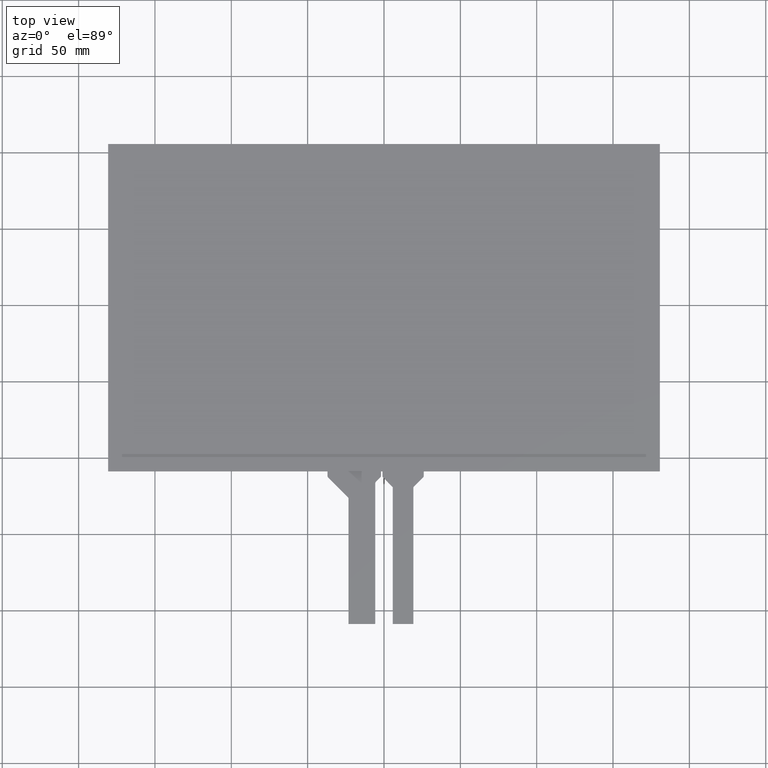
[diagram: clean part render]
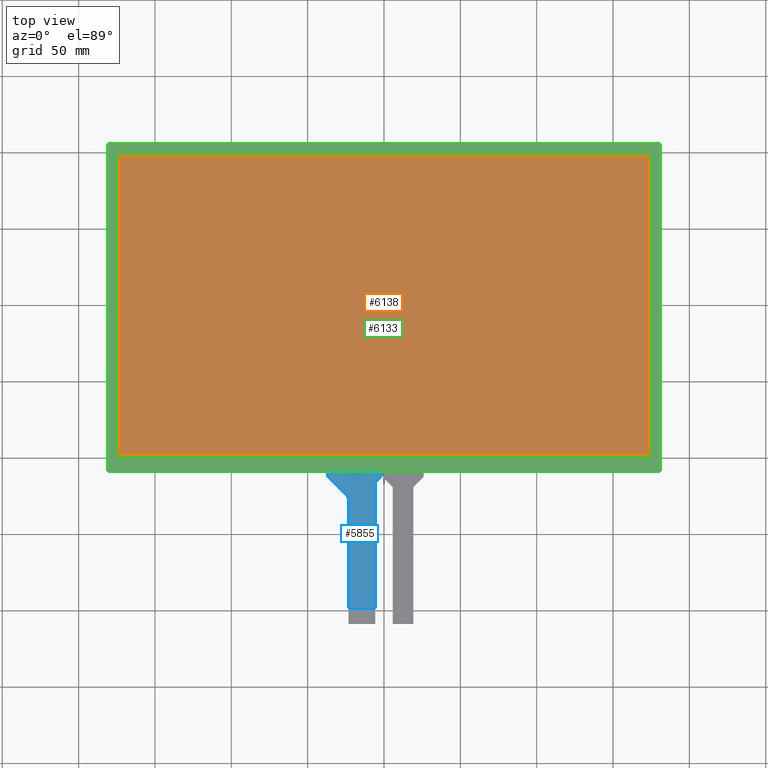
[diagram: same view with three faces highlighted in distinct colors, each labeled with its STEP entity id]
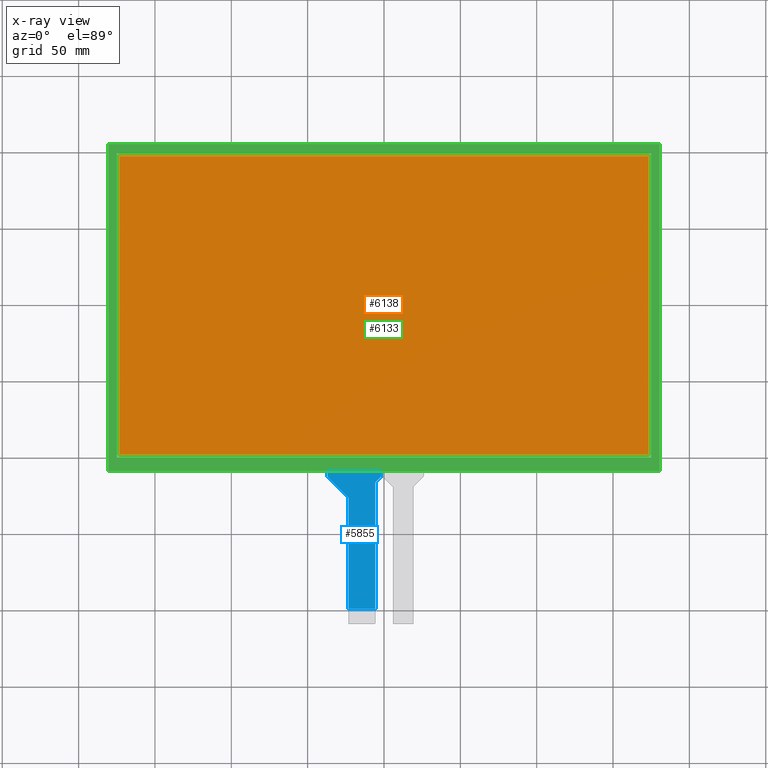
[diagram: x-ray of the same camera — body ghosted, the three highlighted faces saturated]
A machine part, top view with three faces highlighted in distinct colors.
The next image is the same camera in x-ray (body ghosted, the three faces saturated) — at least one of them is partly hidden behind the body in this view.
Their STEP definitions:

[orange] entity #6138 — the highlighted planar face has unit normal (0, 0, 1).
#368=PLANE('',#6476);
#662=FACE_OUTER_BOUND('',#960,.T.);
#960=EDGE_LOOP('',(#5826,#5827,#5828,#5829));
#1766=LINE('',#9618,#2606);
#1770=LINE('',#9626,#2610);
#1773=LINE('',#9632,#2613);
#1776=LINE('',#9637,#2616);
#2606=VECTOR('',#7890,10.);
#2610=VECTOR('',#7896,10.);
#2613=VECTOR('',#7901,10.);
#2616=VECTOR('',#7906,10.);
#3218=VERTEX_POINT('',#9616);
#3219=VERTEX_POINT('',#9617);
#3222=VERTEX_POINT('',#9625);
#3224=VERTEX_POINT('',#9631);
#4070=EDGE_CURVE('',#3218,#3219,#1766,.T.);
#4074=EDGE_CURVE('',#3222,#3218,#1770,.T.);
#4077=EDGE_CURVE('',#3224,#3222,#1773,.T.);
#4080=EDGE_CURVE('',#3219,#3224,#1776,.T.);
#5826=ORIENTED_EDGE('',*,*,#4070,.T.);
#5827=ORIENTED_EDGE('',*,*,#4080,.T.);
#5828=ORIENTED_EDGE('',*,*,#4077,.T.);
#5829=ORIENTED_EDGE('',*,*,#4074,.T.);
#6138=ADVANCED_FACE('',(#662),#368,.T.);
#6476=AXIS2_PLACEMENT_3D('',#9689,#7952,#7953);
#7890=DIRECTION('',(1.,0.,0.));
#7896=DIRECTION('',(0.,-1.,0.));
#7901=DIRECTION('',(-1.,0.,0.));
#7906=DIRECTION('',(0.,1.,0.));
#7952=DIRECTION('center_axis',(0.,0.,1.));
#7953=DIRECTION('ref_axis',(1.,0.,0.));
#9616=CARTESIAN_POINT('',(-172.97,-97.615,0.));
#9617=CARTESIAN_POINT('',(172.97,-97.615,0.));
#9618=CARTESIAN_POINT('',(-86.485,-97.615,0.));
#9625=CARTESIAN_POINT('',(-172.97,97.615,0.));
#9626=CARTESIAN_POINT('',(-172.97,48.05,0.));
#9631=CARTESIAN_POINT('',(172.97,97.615,0.));
#9632=CARTESIAN_POINT('',(86.485,97.615,0.));
#9637=CARTESIAN_POINT('',(172.97,-49.565,0.));
#9689=CARTESIAN_POINT('Origin',(-1.77635683940025E-14,-1.51499999999997,
0.));

[blue] entity #5855 — the highlighted planar face has unit normal (0, 0, 1).
#93=PLANE('',#6179);
#379=FACE_OUTER_BOUND('',#673,.T.);
#673=EDGE_LOOP('',(#4158,#4159,#4160,#4161,#4162,#4163,#4164,#4165,#4166,
#4167,#4168,#4169));
#983=LINE('',#8019,#1823);
#993=LINE('',#8042,#1833);
#994=LINE('',#8045,#1834);
#995=LINE('',#8047,#1835);
#996=LINE('',#8049,#1836);
#997=LINE('',#8053,#1837);
#998=LINE('',#8057,#1838);
#999=LINE('',#8058,#1839);
#1823=VECTOR('',#6531,10.);
#1833=VECTOR('',#6549,10.);
#1834=VECTOR('',#6552,10.);
#1835=VECTOR('',#6553,10.);
#1836=VECTOR('',#6554,10.);
#1837=VECTOR('',#6557,10.);
#1838=VECTOR('',#6560,10.);
#1839=VECTOR('',#6561,10.);
#2648=CIRCLE('',#6172,1.);
#2651=CIRCLE('',#6177,1.);
#2652=CIRCLE('',#6180,1.);
#2653=CIRCLE('',#6181,1.);
#2687=VERTEX_POINT('',#8009);
#2688=VERTEX_POINT('',#8010);
#2691=VERTEX_POINT('',#8018);
#2699=VERTEX_POINT('',#8035);
#2700=VERTEX_POINT('',#8037);
#2701=VERTEX_POINT('',#8044);
#2702=VERTEX_POINT('',#8046);
#2703=VERTEX_POINT('',#8048);
#2704=VERTEX_POINT('',#8050);
#2705=VERTEX_POINT('',#8052);
#2706=VERTEX_POINT('',#8054);
#2707=VERTEX_POINT('',#8056);
#3267=EDGE_CURVE('',#2687,#2688,#2648,.T.);
#3271=EDGE_CURVE('',#2691,#2688,#983,.T.);
#3280=EDGE_CURVE('',#2699,#2700,#2651,.T.);
#3283=EDGE_CURVE('',#2687,#2700,#993,.T.);
#3284=EDGE_CURVE('',#2699,#2701,#994,.T.);
#3285=EDGE_CURVE('',#2702,#2701,#995,.T.);
#3286=EDGE_CURVE('',#2702,#2703,#996,.T.);
#3287=EDGE_CURVE('',#2704,#2703,#2652,.T.);
#3288=EDGE_CURVE('',#2704,#2705,#997,.T.);
#3289=EDGE_CURVE('',#2706,#2705,#2653,.T.);
#3290=EDGE_CURVE('',#2706,#2707,#998,.T.);
#3291=EDGE_CURVE('',#2707,#2691,#999,.T.);
#4158=ORIENTED_EDGE('',*,*,#3280,.F.);
#4159=ORIENTED_EDGE('',*,*,#3284,.T.);
#4160=ORIENTED_EDGE('',*,*,#3285,.F.);
#4161=ORIENTED_EDGE('',*,*,#3286,.T.);
#4162=ORIENTED_EDGE('',*,*,#3287,.F.);
#4163=ORIENTED_EDGE('',*,*,#3288,.T.);
#4164=ORIENTED_EDGE('',*,*,#3289,.F.);
#4165=ORIENTED_EDGE('',*,*,#3290,.T.);
#4166=ORIENTED_EDGE('',*,*,#3291,.T.);
#4167=ORIENTED_EDGE('',*,*,#3271,.T.);
#4168=ORIENTED_EDGE('',*,*,#3267,.F.);
#4169=ORIENTED_EDGE('',*,*,#3283,.T.);
#5855=ADVANCED_FACE('',(#379),#93,.T.);
#6172=AXIS2_PLACEMENT_3D('',#8011,#6523,#6524);
#6177=AXIS2_PLACEMENT_3D('',#8038,#6543,#6544);
#6179=AXIS2_PLACEMENT_3D('',#8043,#6550,#6551);
#6180=AXIS2_PLACEMENT_3D('',#8051,#6555,#6556);
#6181=AXIS2_PLACEMENT_3D('',#8055,#6558,#6559);
#6523=DIRECTION('center_axis',(0.,0.,1.));
#6524=DIRECTION('ref_axis',(-0.923531889914345,0.383521639951696,0.));
#6531=DIRECTION('',(-5.27173776538863E-16,1.,0.));
#6543=DIRECTION('center_axis',(0.,0.,-1.));
#6544=DIRECTION('ref_axis',(0.923531889914352,-0.38352163995168,0.));
#6549=DIRECTION('',(0.708388929935268,0.705822303377532,0.));
#6550=DIRECTION('center_axis',(0.,0.,1.));
#6551=DIRECTION('ref_axis',(1.,0.,0.));
#6552=DIRECTION('',(0.,1.,0.));
#6553=DIRECTION('',(1.,9.83041969784311E-17,0.));
#6554=DIRECTION('',(0.,-1.,0.));
#6555=DIRECTION('center_axis',(0.,0.,-1.));
#6556=DIRECTION('ref_axis',(-0.924226414342084,-0.381844909658848,0.));
#6557=DIRECTION('',(0.705822303377533,-0.708388929935268,0.));
#6558=DIRECTION('center_axis',(0.,0.,1.));
#6559=DIRECTION('ref_axis',(0.924226414342084,0.38184490965885,0.));
#6560=DIRECTION('',(1.07527653716722E-16,-1.,0.));
#6561=DIRECTION('',(1.,0.,0.));
#8009=CARTESIAN_POINT('',(-5.45582230337761,-115.758301208075,-0.2));
#8010=CARTESIAN_POINT('',(-5.75000000000008,-116.466690138011,-0.2));
#8011=CARTESIAN_POINT('Origin',(-4.75000000000008,-116.466690138011,-0.2));
#8018=CARTESIAN_POINT('',(-5.75000000000003,-198.715,-0.2));
#8019=CARTESIAN_POINT('',(-5.75000000000003,-208.715,-0.2));
#8035=CARTESIAN_POINT('',(-2.00000000000008,-111.899722905467,-0.2));
#8037=CARTESIAN_POINT('',(-2.29417769662254,-112.608111835403,-0.2));
#8038=CARTESIAN_POINT('Origin',(-3.00000000000008,-111.899722905467,-0.2));
#8042=CARTESIAN_POINT('',(-5.75000000000008,-116.051413043478,-0.2));
#8043=CARTESIAN_POINT('Origin',(-19.5000000000001,-158.715,-0.2));
#8044=CARTESIAN_POINT('',(-2.00000000000008,-108.715,-0.2));
#8045=CARTESIAN_POINT('',(-2.00000000000008,-112.315,-0.2));
#8046=CARTESIAN_POINT('',(-37.0000000000001,-108.715,-0.2));
#8047=CARTESIAN_POINT('',(80.6,-108.715,-0.2));
#8048=CARTESIAN_POINT('',(-37.0000000000001,-111.901849170578,-0.2));
#8049=CARTESIAN_POINT('',(-37.0000000000001,-108.715,-0.2));
#8050=CARTESIAN_POINT('',(-36.7083889299354,-112.607671473956,-0.2));
#8051=CARTESIAN_POINT('Origin',(-36.0000000000001,-111.901849170578,-0.2));
#8052=CARTESIAN_POINT('',(-23.5416110700648,-125.822328526044,-0.2));
#8053=CARTESIAN_POINT('',(-37.0000000000001,-112.315,-0.2));
#8054=CARTESIAN_POINT('',(-23.25,-126.528150829422,-0.2));
#8055=CARTESIAN_POINT('Origin',(-24.25,-126.528150829422,-0.2));
#8056=CARTESIAN_POINT('',(-23.25,-198.715,-0.2));
#8057=CARTESIAN_POINT('',(-23.25,-126.115,-0.2));
#8058=CARTESIAN_POINT('',(-12.6250000000001,-198.715,-0.2));

[green] entity #6133 — the highlighted planar face has unit normal (0, 0, 1).
#85=FACE_BOUND('',#953,.T.);
#363=PLANE('',#6471);
#657=FACE_OUTER_BOUND('',#952,.T.);
#952=EDGE_LOOP('',(#5794,#5795,#5796,#5797));
#953=EDGE_LOOP('',(#5798,#5799,#5800,#5801));
#1778=LINE('',#9642,#2618);
#1782=LINE('',#9650,#2622);
#1785=LINE('',#9656,#2625);
#1788=LINE('',#9661,#2628);
#1790=LINE('',#9667,#2630);
#1791=LINE('',#9669,#2631);
#1792=LINE('',#9671,#2632);
#1793=LINE('',#9672,#2633);
#2618=VECTOR('',#7910,10.);
#2622=VECTOR('',#7916,10.);
#2625=VECTOR('',#7921,10.);
#2628=VECTOR('',#7926,10.);
#2630=VECTOR('',#7932,10.);
#2631=VECTOR('',#7933,10.);
#2632=VECTOR('',#7934,10.);
#2633=VECTOR('',#7935,10.);
#3226=VERTEX_POINT('',#9640);
#3227=VERTEX_POINT('',#9641);
#3230=VERTEX_POINT('',#9649);
#3232=VERTEX_POINT('',#9655);
#3234=VERTEX_POINT('',#9665);
#3235=VERTEX_POINT('',#9666);
#3236=VERTEX_POINT('',#9668);
#3237=VERTEX_POINT('',#9670);
#4082=EDGE_CURVE('',#3226,#3227,#1778,.T.);
#4086=EDGE_CURVE('',#3230,#3226,#1782,.T.);
#4089=EDGE_CURVE('',#3232,#3230,#1785,.T.);
#4092=EDGE_CURVE('',#3227,#3232,#1788,.T.);
#4094=EDGE_CURVE('',#3234,#3235,#1790,.T.);
#4095=EDGE_CURVE('',#3235,#3236,#1791,.T.);
#4096=EDGE_CURVE('',#3236,#3237,#1792,.T.);
#4097=EDGE_CURVE('',#3237,#3234,#1793,.T.);
#5794=ORIENTED_EDGE('',*,*,#4094,.T.);
#5795=ORIENTED_EDGE('',*,*,#4095,.T.);
#5796=ORIENTED_EDGE('',*,*,#4096,.T.);
#5797=ORIENTED_EDGE('',*,*,#4097,.T.);
#5798=ORIENTED_EDGE('',*,*,#4082,.T.);
#5799=ORIENTED_EDGE('',*,*,#4092,.T.);
#5800=ORIENTED_EDGE('',*,*,#4089,.T.);
#5801=ORIENTED_EDGE('',*,*,#4086,.T.);
#6133=ADVANCED_FACE('',(#657,#85),#363,.T.);
#6471=AXIS2_PLACEMENT_3D('',#9664,#7930,#7931);
#7910=DIRECTION('',(-1.78322224504367E-16,1.,0.));
#7916=DIRECTION('',(-1.,-1.01523509138724E-16,0.));
#7921=DIRECTION('',(-1.78322224504367E-16,-1.,0.));
#7926=DIRECTION('',(1.,5.07617545693619E-17,0.));
#7930=DIRECTION('center_axis',(0.,0.,1.));
#7931=DIRECTION('ref_axis',(1.,0.,0.));
#7932=DIRECTION('',(-1.,0.,0.));
#7933=DIRECTION('',(4.97114787145592E-16,-1.,0.));
#7934=DIRECTION('',(1.,9.83041969784311E-17,0.));
#7935=DIRECTION('',(-1.65704929048531E-16,1.,0.));
#9640=CARTESIAN_POINT('',(-174.97,-99.615,0.));
#9641=CARTESIAN_POINT('',(-174.97,99.615,0.));
#9642=CARTESIAN_POINT('',(-174.97,-50.565,0.));
#9649=CARTESIAN_POINT('',(174.97,-99.615,0.));
#9650=CARTESIAN_POINT('',(87.485,-99.615,0.));
#9655=CARTESIAN_POINT('',(174.97,99.6150000000001,0.));
#9656=CARTESIAN_POINT('',(174.97,49.05,0.));
#9661=CARTESIAN_POINT('',(-87.485,99.615,0.));
#9664=CARTESIAN_POINT('Origin',(-1.77635683940025E-14,-1.51499999999997,
0.));
#9665=CARTESIAN_POINT('',(180.7,105.685,0.));
#9666=CARTESIAN_POINT('',(-180.7,105.685,0.));
#9667=CARTESIAN_POINT('',(180.7,105.685,0.));
#9668=CARTESIAN_POINT('',(-180.7,-108.715,0.));
#9669=CARTESIAN_POINT('',(-180.7,105.685,0.));
#9670=CARTESIAN_POINT('',(180.7,-108.715,0.));
#9671=CARTESIAN_POINT('',(-180.7,-108.715,0.));
#9672=CARTESIAN_POINT('',(180.7,-108.715,0.));